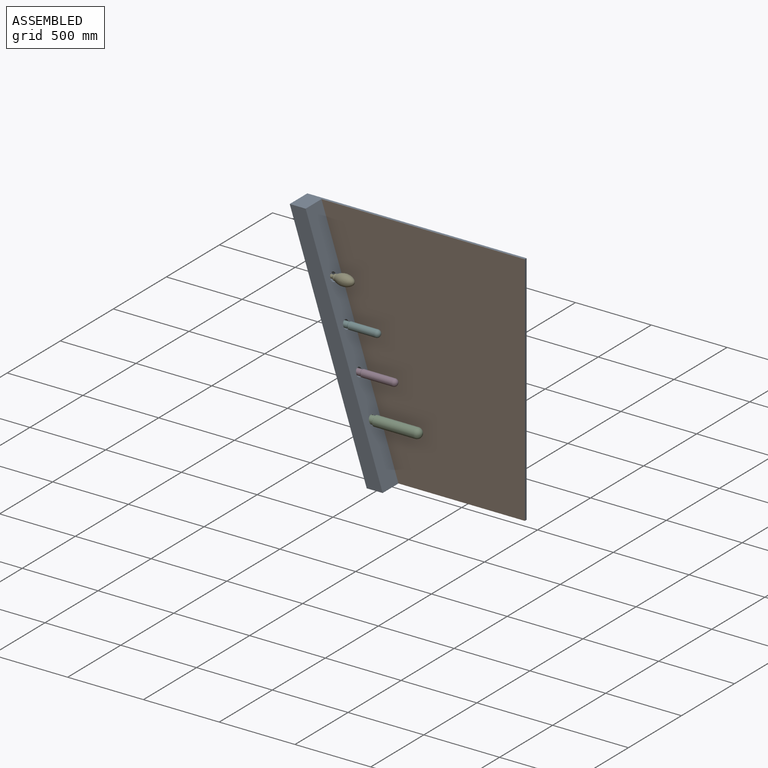
[diagram: assembled view]
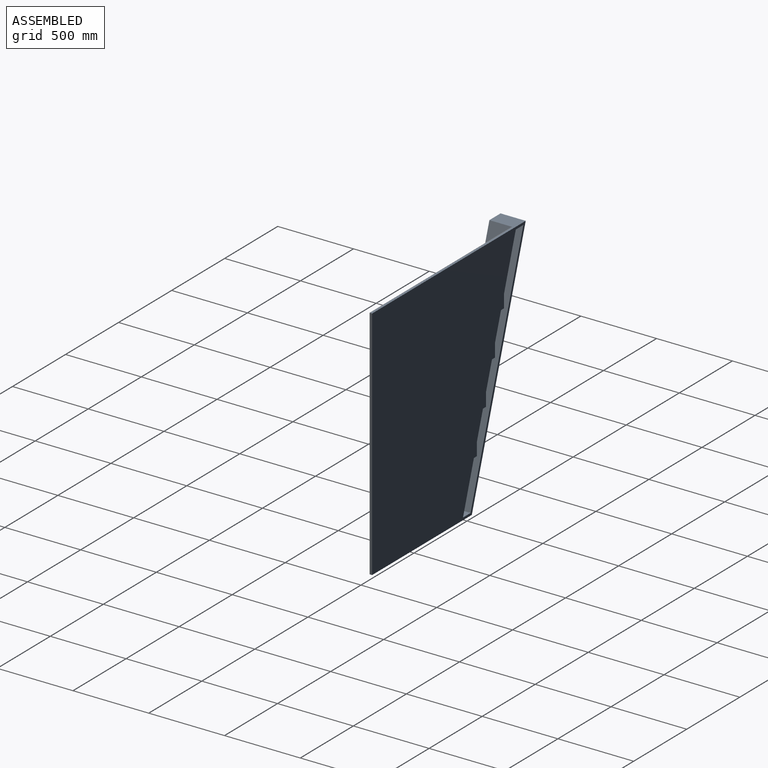
[diagram: assembled view, second angle]
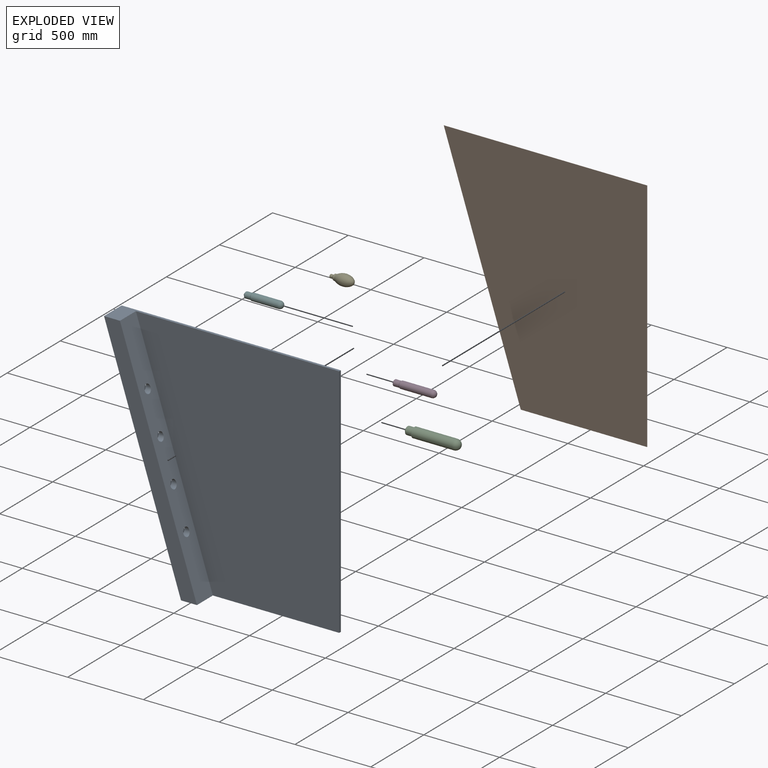
[diagram: exploded view]
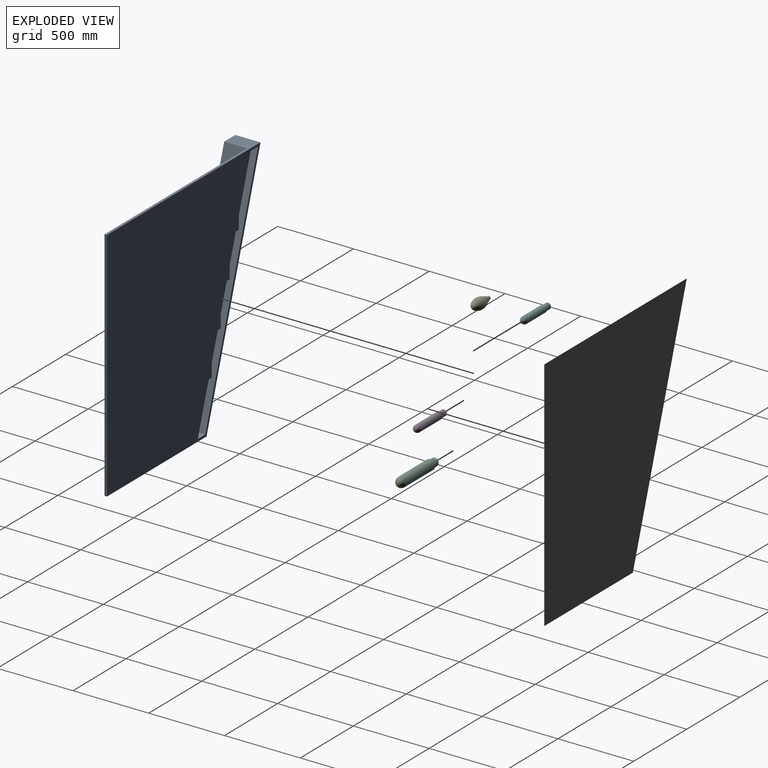
[diagram: exploded view, second angle]
ASSEMBLY  parts=6 mates=5
PART A: 29 faces, bbox 166x1447.2x1560 mm
  f0: plane 174.48x150mm, normal (0,0.95,-0.31), area 27525.3mm2, adj f4,f16,f23,f27
  f1: plane 174.48x150mm, normal (0,0.95,-0.31), area 27525.3mm2, adj f4,f16,f20,f24
  f2: plane 174.48x150mm, normal (0,0.95,-0.31), area 27525.3mm2, adj f4,f16,f17,f21
  f3: plane 340.5x150mm, normal (0,0.95,-0.31), area 53715.7mm2, adj f4,f12,f16,f18
  f4: plane 1560x1447.21mm, normal (1,0,0), area 1756998.1mm2, adj f0,f1,f2,f3,f6,f7,f8,f9
  f5: plane 1560x1342.04mm, normal (-1,0,0), area 1697278.2mm2, adj f6,f8,f9,f10
  f6: plane 1447.21x166mm, normal (0,0,1), area 38931mm2, adj f4,f5,f7,f9,f10,f11
  f7: plane 1560x508.09mm, normal (0,0.95,-0.31), area 272349mm2, adj f4,f6,f8,f11
  f8: plane 939.13x166mm, normal (0,0,-1), area 30801.5mm2, adj f4,f5,f7,f9,f10,f11
  f9: plane 1560x16mm, normal (0,-1,0), area 24960mm2, adj f4,f5,f6,f8
  f10: plane 1560x508.09mm, normal (0,-0.95,0.31), area 236103.8mm2, adj f5,f6,f8,f11,f19,f22,f25,f28
  f11: plane 1560x613.26mm, normal (-1,0,0), area 164065.6mm2, adj f6,f7,f8,f10
  f12: plane 150x71.52mm, normal (0,0,-1), area 10727.4mm2, adj f3,f4,f13,f16
  f13: plane 1528x497.67mm, normal (0,-0.95,0.31), area 241050.3mm2, adj f4,f12,f14,f16
  f14: plane 150x71.52mm, normal (0,0,1), area 10727.4mm2, adj f4,f13,f15,f16
  f15: plane 316.06x150mm, normal (0,0.95,-0.31), area 49859.8mm2, adj f4,f14,f16,f26
  f16: plane 1528x569.18mm, normal (1,0,0), area 104345.7mm2, adj f0,f1,f2,f3,f12,f13,f14,f15
  f17: plane 150x28.34mm, normal (0,0,-1), area 4250.4mm2, adj f2,f4,f16,f18
  f18: plane 150x87mm, normal (0,1,0), area 10674.2mm2, adj f3,f4,f16,f17,f19
  f19: cylinder r=27.5mm len=55mm, axis (0,-1,0), area 5355.6mm2, adj f10,f18
  f20: plane 150x28.34mm, normal (0,0,-1), area 4250.4mm2, adj f1,f4,f16,f21
  f21: plane 150x87mm, normal (0,1,0), area 10674.2mm2, adj f2,f4,f16,f20,f22
  f22: cylinder r=27.5mm len=55mm, axis (0,-1,0), area 5355.6mm2, adj f10,f21
  f23: plane 150x28.34mm, normal (0,0,-1), area 4250.4mm2, adj f0,f4,f16,f24
  f24: plane 150x87mm, normal (0,1,0), area 10674.2mm2, adj f1,f4,f16,f23,f25
  f25: cylinder r=27.5mm len=55mm, axis (0,-1,0), area 5355.6mm2, adj f10,f24
  f26: plane 150x28.34mm, normal (0,0,-1), area 4250.4mm2, adj f4,f15,f16,f27
  f27: plane 150x87mm, normal (0,1,0), area 10674.2mm2, adj f0,f4,f16,f26,f28
  f28: cylinder r=27.5mm len=55mm, axis (0,-1,0), area 5355.6mm2, adj f10,f27
PART B: 6 faces, bbox 1x1342x1560 mm
  f0: plane 833.96x1mm, normal (0,0,-1), area 834mm2, adj f1,f3,f4,f5
  f1: plane 1560x1mm, normal (0,-1,0), area 1560mm2, adj f0,f2,f4,f5
  f2: plane 1342.04x1mm, normal (0,0,1), area 1342mm2, adj f1,f3,f4,f5
  f3: plane 1560x508.09mm, normal (0,0.95,-0.31), area 1640.7mm2, adj f0,f2,f4,f5
  f4: plane 1560x1342.04mm, normal (-1,0,0), area 1697278.2mm2, adj f0,f1,f2,f3
  f5: plane 1560x1342.04mm, normal (1,0,0), area 1697278.2mm2, adj f0,f1,f2,f3
PART C: 8 faces, bbox 66x66x360 mm
  f0: cylinder r=33mm len=272mm, axis (0,0,1), area 56397.9mm2, adj f1,f6
  f1: cone r=33mm half-angle=54.5deg, axis (0,0,1), area 1594.5mm2, adj f0,f2
  f2: cylinder r=26mm len=52mm, axis (0,0,1), area 6044.4mm2, adj f1,f7
  f3: plane 42x42mm, normal (0,0,-1), area 128.8mm2, adj f4,f7
  f4: cone r=12mm half-angle=45deg, axis (0,0,1), area 1137.4mm2, adj f3,f5
  f5: plane 24x24mm, normal (0,0,-1), area 452.4mm2, adj f4
  f6: sphere r=33mm, area 6842.4mm2, adj f0
  f7: torus R=21mm, axis (0,0,-1), area 1193.4mm2, adj f2,f3
PART D: 7 faces, bbox 47x47x285 mm
  f0: cylinder r=23.5mm len=206.5mm, axis (0,0,1), area 30490.7mm2, adj f1,f5
  f1: cone r=23.5mm half-angle=35deg, axis (0,0,1), area 834.1mm2, adj f0,f2
  f2: cylinder r=20mm len=40mm, axis (0,0,1), area 4649.6mm2, adj f1,f6
  f3: cone r=7mm half-angle=45deg, axis (0,0,1), area 781.9mm2, adj f4,f6
  f4: plane 14x14mm, normal (0,0,-1), area 153.9mm2, adj f3
  f5: sphere r=23.5mm, area 3469.9mm2, adj f0
  f6: torus R=15mm, axis (0,0,-1), area 897.3mm2, adj f2,f3
PART E: 10 faces, bbox 55.9x55.9x48.7 mm
  f0: plane 18x18mm, normal (0,0,-1), area 77.8mm2, adj f1,f9
  f1: cone r=7.5mm half-angle=50deg, axis (0,0,1), area 123.3mm2, adj f0,f2
  f2: plane 10.23x10.23mm, normal (0,0,-1), area 82.2mm2, adj f1
  f3: revolved ~0x0mm, area 0mm2, adj f7
  f4: cylinder r=20mm len=40mm, axis (0,0,1), area 310.7mm2, adj f7,f8
  f5: cone r=12mm half-angle=45deg, axis (0,0,1), area 886.6mm2, adj f6,f8
  f6: cylinder r=12mm len=24mm, axis (0,0,1), area 1281.8mm2, adj f5,f9
  f7: torus R=40mm, axis (0,0,1), area 1341.6mm2, adj f3,f4
  f8: torus R=15mm, axis (0,0,-1), area 481.2mm2, adj f4,f5
  f9: torus R=9mm, axis (0,0,-1), area 323mm2, adj f0,f6
PART F: 7 faces, bbox 47x47x257 mm
  f0: cylinder r=23.5mm len=178.5mm, axis (0,0,1), area 26356.4mm2, adj f1,f5
  f1: cone r=23.5mm half-angle=35deg, axis (0,0,1), area 834.1mm2, adj f0,f2
  f2: cylinder r=20mm len=40mm, axis (0,0,1), area 4649.6mm2, adj f1,f6
  f3: cone r=7mm half-angle=45deg, axis (0,0,1), area 781.9mm2, adj f4,f6
  f4: plane 14x14mm, normal (0,0,-1), area 153.9mm2, adj f3
  f5: sphere r=23.5mm, area 3469.9mm2, adj f0
  f6: torus R=15mm, axis (0,0,-1), area 897.3mm2, adj f2,f3
PLACE A rot(axis=(0,0,1),90deg) t=(1316.98,-1264,-210)mm
PLACE B rot(axis=(0,0,1),90deg) t=(1316.98,-1264,-210)mm
PLACE C rot(axis=(-0.71,0,-0.71),180deg) t=(-570.29,-75,375.56)mm
PLACE D rot(axis=(-0.71,0,-0.71),180deg) t=(-655.45,-75,837.04)mm
PLACE E rot(axis=(-0.71,0,-0.71),180deg) t=(-815.78,-75,1282.66)mm
PLACE F rot(axis=(-0.58,0.58,-0.58),120deg) t=(-740.62,-475,898.52)mm
MATE fastened F.f0 <-> A.f22  axis (-1,0,0) through (-740.62,-75,898.52)mm
MATE fastened D.f0 <-> A.f25  axis (-1,0,0) through (-655.45,-75,637.04)mm
MATE fastened E.f1 <-> A.f19  axis (-1,0,0) through (-815.78,-75,1160)mm
MATE fastened B.f5 <-> A.f5  axis (0,1,0) through (416.98,0,1560)mm
MATE fastened C.f0 <-> A.f28  axis (-1,0,0) through (-570.29,-75,375.56)mm
